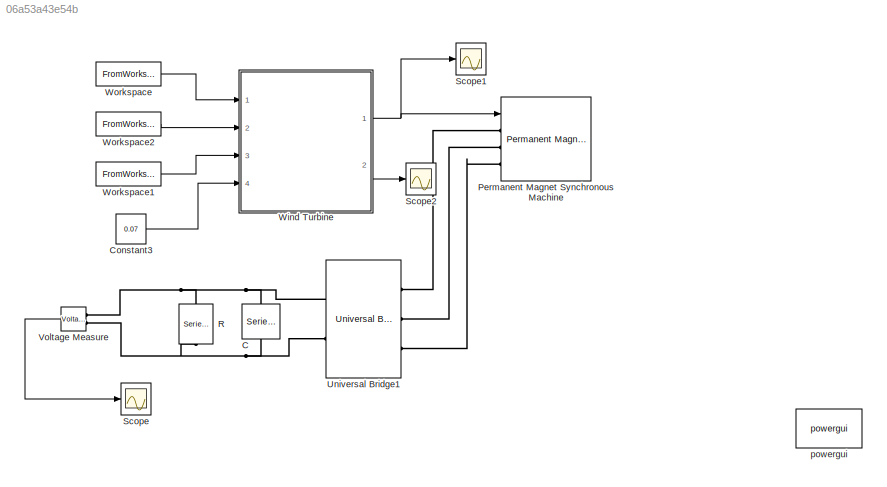
MODEL slx_06a53a43e54b
KIND model
CONFIG AbsTol = auto
CONFIG FixedStep = auto
CONFIG MaxStep = auto
CONFIG MinStep = auto
CONFIG RelTol = 1e-3
CONFIG SampleTimeConstraint = Unconstrained
CONFIG Solver = VariableStepAuto
CONFIG SolverMode = Auto
CONFIG SolverName = VariableStepAuto
CONFIG StartTime = 0.0
CONFIG StopTime = 70
BLOCK [Reference] C  REF=powerlib/Elements/Series RLC Branch
  Ports = [0, 0, 0, 0, 0, 1, 1]
  SourceBlock = powerlib/Elements/Series RLC Branch
  SourceType = Series RLC Branch
BLOCK [Constant] Constant3
  Value = 0.07
BLOCK [Reference] Permanent Magnet Synchronous Machine  REF=powerlib/Machines/Permanent Magnet
Synchronous Machine
  Ports = [1, 1, 0, 0, 0, 3]
  SourceBlock = powerlib/Machines/Permanent Magnet\nSynchronous Machine
  SourceType = Permanent Magnet Synchronous Machine
BLOCK [Reference] R  REF=powerlib/Elements/Series RLC Branch
  Ports = [0, 0, 0, 0, 0, 1, 1]
  SourceBlock = powerlib/Elements/Series RLC Branch
  SourceType = Series RLC Branch
BLOCK [Scope] Scope
  Ports = [1]
  ScopeSpecificationString = Simulink.scopes.TimeScopeBlockCfg('CurrentConfiguration', extmgr.ConfigurationSet(extmgr.Configuration('Core','General UI',true),extmgr.Configuration('Core','Source UI',true),extmgr.Configuration('Sources','WiredSimulink',true,'DataLoggingVariableName','ScopeData5'),extmgr.Configuration('Visuals','Time Domain',true,'SerializedDisplays',{struct('MinYLimReal','-0.03698','MaxYLimReal','0.33286','YLab...<+1443ch>
BLOCK [Scope] Scope1
  Ports = [1]
  ScopeSpecificationString = Simulink.scopes.TimeScopeBlockCfg('CurrentConfiguration', extmgr.ConfigurationSet(extmgr.Configuration('Core','General UI',true),extmgr.Configuration('Core','Source UI',true),extmgr.Configuration('Sources','WiredSimulink',true),extmgr.Configuration('Visuals','Time Domain',true,'SerializedDisplays',{struct('MinYLimReal','-0.00754','MaxYLimReal','-0.00554','YLabelReal','','MinYLimMag','0.00000','Max...<+1405ch>
BLOCK [Scope] Scope2
  Ports = [1]
  ScopeSpecificationString = Simulink.scopes.TimeScopeBlockCfg('CurrentConfiguration', extmgr.ConfigurationSet(extmgr.Configuration('Core','General UI',true),extmgr.Configuration('Core','Source UI',true),extmgr.Configuration('Sources','WiredSimulink',true,'DataLoggingVariableName','ScopeData1'),extmgr.Configuration('Visuals','Time Domain',true,'SerializedDisplays',{struct('MinYLimReal','0.58023','MaxYLimReal','7.77818','YLabe...<+1441ch>
BLOCK [Reference] Universal Bridge1  REF=powerlib/Power
Electronics/Universal Bridge
  Ports = [0, 0, 0, 0, 0, 3, 2]
  SourceBlock = powerlib/Power\nElectronics/Universal Bridge
  SourceType = Universal Bridge
BLOCK [Reference] Voltage Measure  REF=powerlib/Measurements/Voltage Measurement
  Ports = [0, 1, 0, 0, 0, 2]
  SourceBlock = powerlib/Measurements/Voltage Measurement
  SourceType = Voltage Measurement
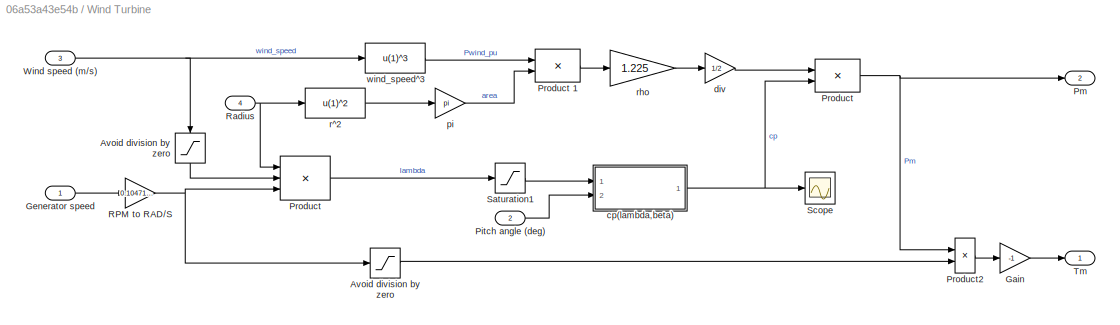
BLOCK [SubSystem] Wind Turbine
  AncestorBlock = re_lib/Wind Generation/Wind Turbine
  DialogController = POWERSYS.PowerSysDialog
  Ports = [4, 2]
  RequestExecContextInheritance = off
  Variant = off
BLOCK [Saturate] Wind Turbine/Avoid division by zero
  InputPortMap = u0
  LowerLimit = 1e-6
  Ports = [1, 1]
  UpperLimit = 1e6
BLOCK [Saturate] Wind Turbine/Avoid division by zero 
  InputPortMap = u0
  LowerLimit = 1e-6
  Ports = [1, 1]
  UpperLimit = 1e6
BLOCK [Gain] Wind Turbine/Gain
  Gain = -1
BLOCK [Inport] Wind Turbine/Generator speed
  IconDisplay = Port number
BLOCK [Inport] Wind Turbine/Pitch angle (deg)
  IconDisplay = Port number
  Port = 2
BLOCK [Outport] Wind Turbine/Pm
  IconDisplay = Port number
  Port = 2
BLOCK [Product] Wind Turbine/Product
  InputSameDT = off
  Inputs = */*
  Ports = [3, 1]
  RndMeth = Floor
BLOCK [Product] Wind Turbine/Product 
  InputSameDT = off
  Ports = [2, 1]
  RndMeth = Floor
BLOCK [Product] Wind Turbine/Product 1
  InputSameDT = off
  Ports = [2, 1]
  RndMeth = Floor
BLOCK [Product] Wind Turbine/Product2
  Inputs = */
  Ports = [2, 1]
  RndMeth = Floor
BLOCK [Gain] Wind Turbine/RPM to RAD//S
  Gain = 0.104719755
BLOCK [Inport] Wind Turbine/Radius
  IconDisplay = Port number
  Port = 4
BLOCK [Saturate] Wind Turbine/Saturation1
  InputPortMap = u0
  LowerLimit = 1e-6
  Ports = [1, 1]
  UpperLimit = inf
BLOCK [Scope] Wind Turbine/Scope
  Ports = [1]
  ScopeSpecificationString = Simulink.scopes.TimeScopeBlockCfg('CurrentConfiguration', extmgr.ConfigurationSet(extmgr.Configuration('Core','General UI',true),extmgr.Configuration('Core','Source UI',true),extmgr.Configuration('Sources','WiredSimulink',true,'DataLoggingVariableName','ScopeData2'),extmgr.Configuration('Visuals','Time Domain',true,'SerializedDisplays',{struct('MinYLimReal','0.06199','MaxYLimReal','0.09389','YLabe...<+1359ch>
BLOCK [Outport] Wind Turbine/Tm
  IconDisplay = Port number
BLOCK [Inport] Wind Turbine/Wind speed (m//s)
  IconDisplay = Port number
  Port = 3
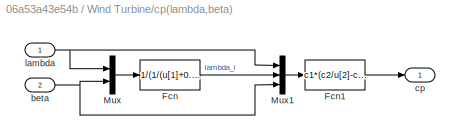
BLOCK [SubSystem] Wind Turbine/cp(lambda,beta)
  Ports = [2, 1]
  RequestExecContextInheritance = off
  Variant = off
BLOCK [Fcn] Wind Turbine/cp(lambda,beta)/Fcn
  Expr = 1/(1/(u[1]+0.08*u[2])-0.035/(u[2]^3+1))
BLOCK [Fcn] Wind Turbine/cp(lambda,beta)/Fcn1
  Expr = c1*(c2/u[2]-c3*u[3]-c4)*exp(-c5/u[2])+c6*u[1]
BLOCK [Mux] Wind Turbine/cp(lambda,beta)/Mux
  DisplayOption = bar
  Inputs = 2
  Ports = [2, 1]
BLOCK [Mux] Wind Turbine/cp(lambda,beta)/Mux1
  DisplayOption = bar
  Inputs = 3
  Ports = [3, 1]
BLOCK [Inport] Wind Turbine/cp(lambda,beta)/beta
  IconDisplay = Port number
  Port = 2
BLOCK [Outport] Wind Turbine/cp(lambda,beta)/cp
  IconDisplay = Port number
BLOCK [Inport] Wind Turbine/cp(lambda,beta)/lambda
  IconDisplay = Port number
BLOCK [Gain] Wind Turbine/div
  Gain = 1/2
BLOCK [Gain] Wind Turbine/pi
  Gain = pi
BLOCK [Fcn] Wind Turbine/r^2
  Expr = u(1)^2
BLOCK [Gain] Wind Turbine/rho
  Gain = 1.225
BLOCK [Fcn] Wind Turbine/wind_speed^3
  Expr = u(1)^3
BLOCK [FromWorkspace] Workspace
  SampleTime = 0
  VariableName = rotation
  ZeroCross = on
BLOCK [FromWorkspace] Workspace1
  SampleTime = 0
  VariableName = wind
  ZeroCross = on
BLOCK [FromWorkspace] Workspace2
  SampleTime = 0
  VariableName = pitch
  ZeroCross = on
BLOCK [Reference] powergui  REF=powerlib/powergui
  Ports = []
  Priority = 1
  SourceBlock = powerlib/powergui
  SourceType = PSB option menu block
  UserDataPersistent = on
LINE Constant3:1 -> Wind Turbine:4
LINE Voltage Measure:1 -> Scope:1
NET Wind Turbine:1 -> Permanent Magnet Synchronous Machine:1, Scope1:1
LINE Wind Turbine:2 -> Scope2:1
LINE Workspace1:1 -> Wind Turbine:3
LINE Workspace2:1 -> Wind Turbine:2
LINE Workspace:1 -> Wind Turbine:1
PNET net1: C:LConn1 -- R:LConn1 -- Universal Bridge1:RConn1 -- Voltage Measure:LConn1
PNET net2: C:RConn1 -- R:RConn1 -- Universal Bridge1:RConn2 -- Voltage Measure:LConn2
PLINE Permanent Magnet Synchronous Machine:LConn1 -- Universal Bridge1:LConn1
PLINE Permanent Magnet Synchronous Machine:LConn2 -- Universal Bridge1:LConn2
PLINE Permanent Magnet Synchronous Machine:LConn3 -- Universal Bridge1:LConn3
note: NET lines group one-source signal fan-out (src -> all destinations, sorted); 1:1 wires keep LINE; PNET lines group multi-terminal physical nets as a canonical sorted terminal list (undirected conserving connections); 2-terminal nets keep the pairwise PLINE form
